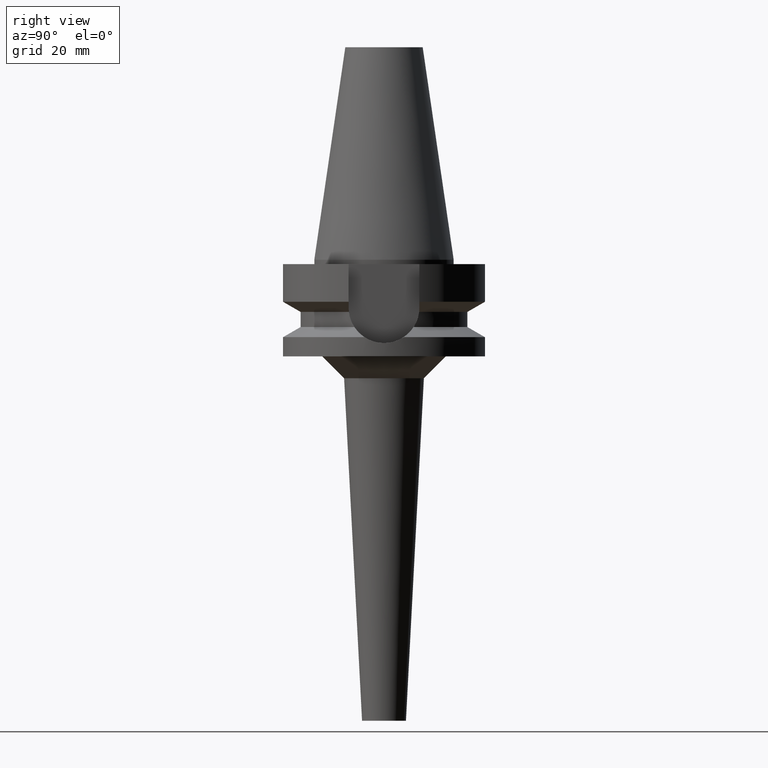
[diagram: clean part render]
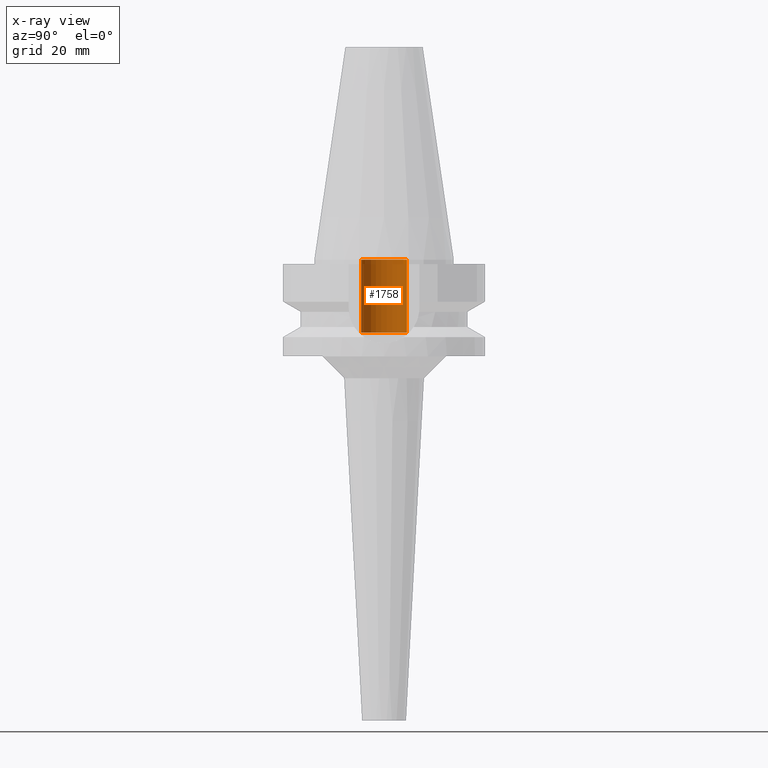
[diagram: x-ray — body ghosted, one internal face saturated and labeled with its STEP entity id]
A machine part, right view, then the same camera in x-ray: the body is ghosted and one INTERNAL B-rep face — a face not visible from any outside direction — is saturated and labeled: STEP entity #1758.
In plain terms, the highlighted cylindrical surface (edge-blend (fillet) strip) has radius 5.2 mm, axis along (0, 0, -1).
Its self-contained STEP definition (entity closure, byte-faithful):
#829=CARTESIAN_POINT('',(0.E0,1.911306259429E-14,-1.66E1));
#830=DIRECTION('',(0.E0,0.E0,-1.E0));
#831=DIRECTION('',(0.E0,-1.E0,0.E0));
#832=AXIS2_PLACEMENT_3D('',#829,#830,#831);
#861=DIRECTION('',(0.E0,0.E0,1.E0));
#862=VECTOR('',#861,1.66E1);
#863=CARTESIAN_POINT('',(0.E0,-5.2E0,-1.66E1));
#864=LINE('',#863,#862);
#868=CARTESIAN_POINT('',(0.E0,1.911306259429E-14,-1.421085471520E-14));
#869=DIRECTION('',(0.E0,0.E0,-1.E0));
#870=DIRECTION('',(0.E0,-1.E0,0.E0));
#871=AXIS2_PLACEMENT_3D('',#868,#869,#870);
#876=DIRECTION('',(0.E0,0.E0,1.E0));
#877=VECTOR('',#876,1.66E1);
#878=CARTESIAN_POINT('',(0.E0,5.2E0,-1.66E1));
#879=LINE('',#878,#877);
#987=CARTESIAN_POINT('',(0.E0,5.2E0,-1.421085471520E-14));
#988=VERTEX_POINT('',#987);
#989=CARTESIAN_POINT('',(0.E0,-5.2E0,-1.421085471520E-14));
#990=VERTEX_POINT('',#989);
#991=CARTESIAN_POINT('',(0.E0,5.2E0,-1.66E1));
#992=VERTEX_POINT('',#991);
#993=CARTESIAN_POINT('',(0.E0,-5.2E0,-1.66E1));
#994=VERTEX_POINT('',#993);
#1744=CARTESIAN_POINT('',(0.E0,1.911306259429E-14,5.607E1));
#1745=DIRECTION('',(0.E0,0.E0,-1.E0));
#1746=DIRECTION('',(0.E0,-1.E0,0.E0));
#1747=AXIS2_PLACEMENT_3D('',#1744,#1745,#1746);
#1748=CYLINDRICAL_SURFACE('',#1747,5.2E0);
#1750=ORIENTED_EDGE('',*,*,#1749,.F.);
#1751=ORIENTED_EDGE('',*,*,#1733,.F.);
#1753=ORIENTED_EDGE('',*,*,#1752,.T.);
#1755=ORIENTED_EDGE('',*,*,#1754,.T.);
#1756=EDGE_LOOP('',(#1750,#1751,#1753,#1755));
#1757=FACE_OUTER_BOUND('',#1756,.F.);
#833=CIRCLE('',#832,5.2E0);
#872=CIRCLE('',#871,5.2E0);
#1733=EDGE_CURVE('',#994,#992,#833,.T.);
#1749=EDGE_CURVE('',#992,#988,#879,.T.);
#1752=EDGE_CURVE('',#994,#990,#864,.T.);
#1754=EDGE_CURVE('',#990,#988,#872,.T.);
#1758=ADVANCED_FACE('',(#1757),#1748,.F.);